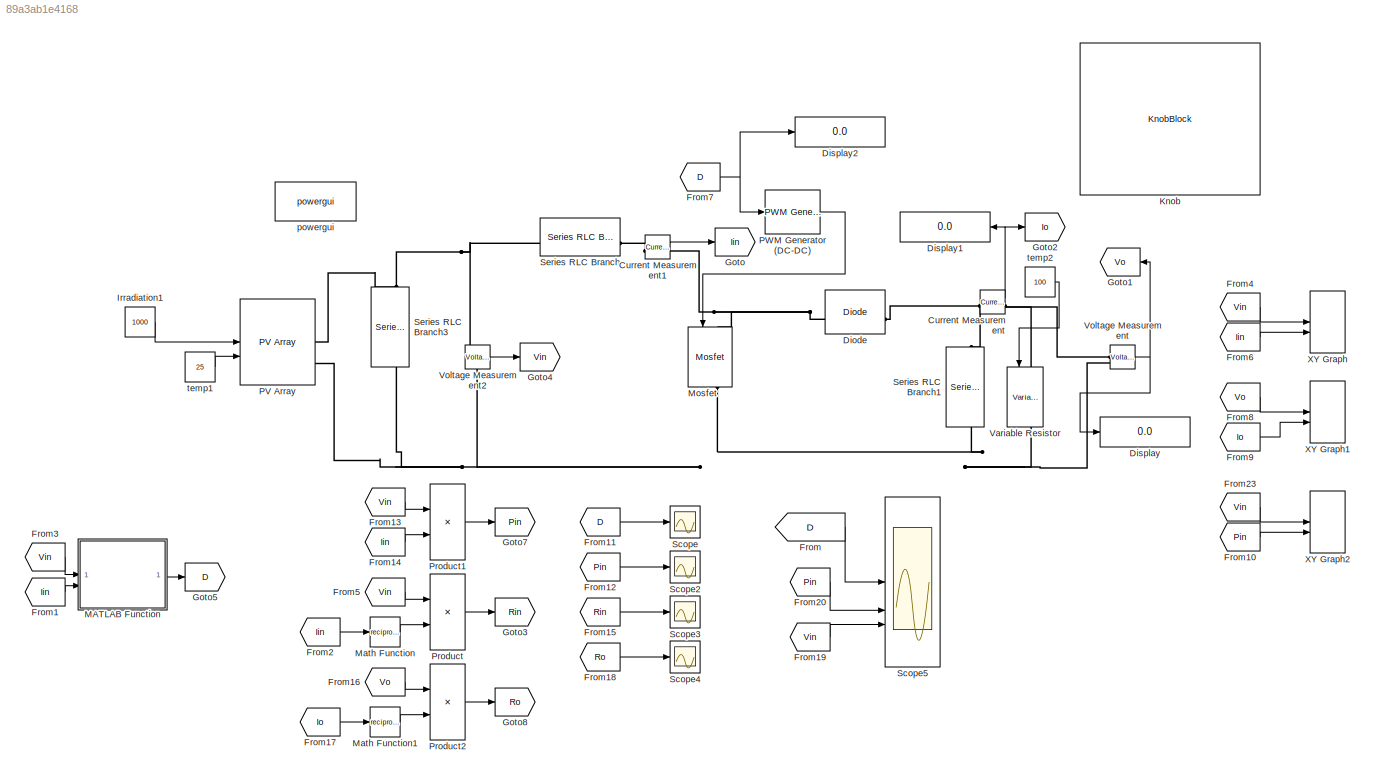
MODEL slx_89a3ab1e4168
KIND model
CONFIG AbsTol = auto
CONFIG EnableMultiTasking = off
CONFIG FixedStep = auto
CONFIG MaxStep = auto
CONFIG MinStep = auto
CONFIG RelTol = 1e-3
CONFIG SampleTimeConstraint = Unconstrained
CONFIG SolverName = VariableStepAuto
CONFIG StartTime = 0.0
CONFIG StopTime = 100
BLOCK [Reference] Current Measurement  REF=spsCurrentMeasurementLib/Current Measurement
  LibrarySourceBlock = sps_lib/Sensors and Measurements/Current Measurement
  SourceBlock = spsCurrentMeasurementLib/Current Measurement
  SourceType = Current Measurement
  UserDataPersistent = on
BLOCK [Reference] Current Measurement1  REF=spsCurrentMeasurementLib/Current Measurement
  LibrarySourceBlock = sps_lib/Sensors and Measurements/Current Measurement
  SourceBlock = spsCurrentMeasurementLib/Current Measurement
  SourceType = Current Measurement
  UserDataPersistent = on
BLOCK [Reference] Diode  REF=spsDiodeLib/Diode
  LibrarySourceBlock = sps_lib/Power Electronics/Diode
  SourceBlock = spsDiodeLib/Diode
  SourceType = Diode
BLOCK [Display] Display
  Decimation = 1
BLOCK [Display] Display1
  Decimation = 1
BLOCK [Display] Display2
  Decimation = 1
BLOCK [From] From
  GotoTag = D
BLOCK [From] From1
  GotoTag = Iin
BLOCK [From] From10
  GotoTag = Pin
BLOCK [From] From11
  GotoTag = D
BLOCK [From] From12
  GotoTag = Pin
BLOCK [From] From13
  GotoTag = Vin
BLOCK [From] From14
  GotoTag = Iin
BLOCK [From] From15
  GotoTag = Rin
BLOCK [From] From16
  GotoTag = Vo
BLOCK [From] From17
  GotoTag = Io
BLOCK [From] From18
  GotoTag = Ro
BLOCK [From] From19
  GotoTag = Vin
BLOCK [From] From2
  GotoTag = Iin
BLOCK [From] From20
  GotoTag = Pin
BLOCK [From] From23
  GotoTag = Vin
BLOCK [From] From3
  GotoTag = Vin
BLOCK [From] From4
  GotoTag = Vin
BLOCK [From] From5
  GotoTag = Vin
BLOCK [From] From6
  GotoTag = Iin
BLOCK [From] From7
  GotoTag = D
BLOCK [From] From8
  GotoTag = Vo
BLOCK [From] From9
  GotoTag = Io
BLOCK [Goto] Goto
  GotoTag = Iin
BLOCK [Goto] Goto1
  GotoTag = Vo
BLOCK [Goto] Goto2
  GotoTag = Io
BLOCK [Goto] Goto3
  GotoTag = Rin
BLOCK [Goto] Goto4
  GotoTag = Vin
BLOCK [Goto] Goto5
  GotoTag = D
BLOCK [Goto] Goto7
  GotoTag = Pin
BLOCK [Goto] Goto8
  GotoTag = Ro
BLOCK [Constant] Irradiation1
  Value = 1000
BLOCK [KnobBlock] Knob
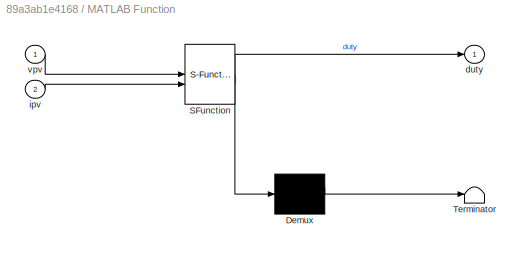
BLOCK [SubSystem] MATLAB Function
  ErrorFcn = Stateflow.Translate.translate
  PermitHierarchicalResolution = ExplicitOnly
  SFBlockType = MATLAB Function
  SystemSampleTime = 0.01
  TreatAsAtomicUnit = on
BLOCK [Demux] MATLAB Function/ Demux 
  Outputs = 1
BLOCK [S-Function] MATLAB Function/ SFunction 
  EnableBusSupport = on
  FunctionName = sf_sfun
  PortCounts = [2 2]
  SFcnIsStateOwnerBlock = off
  SFunctionDeploymentMode = off
  Tag = Stateflow S-Function 2
BLOCK [Terminator] MATLAB Function/ Terminator 
BLOCK [Outport] MATLAB Function/duty
BLOCK [Inport] MATLAB Function/ipv
  Port = 2
BLOCK [Inport] MATLAB Function/vpv
BLOCK [Math] Math Function
  Operator = reciprocal
BLOCK [Math] Math Function1
  Operator = reciprocal
BLOCK [Reference] Mosfet  REF=spsMosfetLib/Mosfet
  LibrarySourceBlock = sps_lib/Power Electronics/Mosfet
  NameLocation = left
  SourceBlock = spsMosfetLib/Mosfet
  SourceType = Mosfet
BLOCK [Reference] PV Array  REF=spsPVArrayLib/PV Array
  LibrarySourceBlock = sps_lib/Sources/PV Array
  SourceBlock = spsPVArrayLib/PV Array
  SourceType = PV array
BLOCK [Reference] PWM Generator (DC-DC)  REF=spsPWMGeneratorDCDCLib/PWM Generator
(DC-DC)
  LibrarySourceBlock = sps_lib/Power Electronics/Power Electronics Control/PWM Generator\n(DC-DC)
  SourceBlock = spsPWMGeneratorDCDCLib/PWM Generator\n(DC-DC)
  SourceType = PWM Generator (DC-DC)
BLOCK [Product] Product
BLOCK [Product] Product1
BLOCK [Product] Product2
BLOCK [Scope] Scope
  Floating = off
  NumInputPorts = 1
  ScopeSpecificationString = Simulink.scopes.TimeScopeBlockCfg('CurrentConfiguration', extmgr.ConfigurationSet(extmgr.Configuration('Core','General UI',true),extmgr.Configuration('Core','Source UI',true),extmgr.Configuration('Sources','WiredSimulink',true,'DataLoggingVariableName','ScopeData1'),extmgr.Configuration('Visuals','Time Domain',true,'SerializedDisplays',{struct('MinYLimReal','0.48388','MaxYLimReal','0.50517','YLabe...<+1565ch>
BLOCK [Scope] Scope2
  Floating = off
  NumInputPorts = 1
  ScopeSpecificationString = Simulink.scopes.TimeScopeBlockCfg('CurrentConfiguration', extmgr.ConfigurationSet(extmgr.Configuration('Core','General UI',true),extmgr.Configuration('Core','Source UI',true),extmgr.Configuration('Sources','WiredSimulink',true,'DataLoggingVariableName','ScopeData2'),extmgr.Configuration('Visuals','Time Domain',true,'SerializedDisplays',{struct('MinYLimReal','311.87671','MaxYLimReal','325.5011','YL...<+1578ch>
BLOCK [Scope] Scope3
  Floating = off
  NumInputPorts = 1
  ScopeSpecificationString = Simulink.scopes.TimeScopeBlockCfg('CurrentConfiguration', extmgr.ConfigurationSet(extmgr.Configuration('Core','General UI',true),extmgr.Configuration('Core','Source UI',true),extmgr.Configuration('Sources','WiredSimulink',true,'DataLoggingVariableName','ScopeData3'),extmgr.Configuration('Visuals','Time Domain',true,'SerializedDisplays',{struct('MinYLimReal','311.87671','MaxYLimReal','325.5011','YL...<+1578ch>
BLOCK [Scope] Scope4
  Floating = off
  NumInputPorts = 1
  ScopeSpecificationString = Simulink.scopes.TimeScopeBlockCfg('CurrentConfiguration', extmgr.ConfigurationSet(extmgr.Configuration('Core','General UI',true),extmgr.Configuration('Core','Source UI',true),extmgr.Configuration('Sources','WiredSimulink',true,'DataLoggingVariableName','ScopeData4'),extmgr.Configuration('Visuals','Time Domain',true,'SerializedDisplays',{struct('MinYLimReal','311.87671','MaxYLimReal','325.5011','YL...<+1578ch>
BLOCK [Scope] Scope5
  Floating = off
  NumInputPorts = 3
  ScopeSpecificationString = Simulink.scopes.TimeScopeBlockCfg('CurrentConfiguration', extmgr.ConfigurationSet(extmgr.Configuration('Core','General UI',true,'FigureColor',[1 1 1]),extmgr.Configuration('Core','Source UI',true),extmgr.Configuration('Sources','WiredSimulink',true),extmgr.Configuration('Visuals','Time Domain',true,'SerializedDisplays',{struct('MinYLimReal','0.57562','MaxYLimReal','0.81938','YLabelReal','','MinYLi...<+3089ch>
BLOCK [Reference] Series RLC Branch  REF=spsSeriesRLCBranchLib/Series RLC Branch
  LibrarySourceBlock = sps_lib/Passives/Series RLC Branch
  SourceBlock = spsSeriesRLCBranchLib/Series RLC Branch
  SourceType = Series RLC Branch
BLOCK [Reference] Series RLC Branch1  REF=spsSeriesRLCBranchLib/Series RLC Branch
  LibrarySourceBlock = sps_lib/Passives/Series RLC Branch
  NameLocation = left
  SourceBlock = spsSeriesRLCBranchLib/Series RLC Branch
  SourceType = Series RLC Branch
BLOCK [Reference] Series RLC Branch3  REF=spsSeriesRLCBranchLib/Series RLC Branch
  LibrarySourceBlock = sps_lib/Passives/Series RLC Branch
  NameLocation = left
  SourceBlock = spsSeriesRLCBranchLib/Series RLC Branch
  SourceType = Series RLC Branch
BLOCK [Reference] Variable Resistor  REF=spsVariableResistorLib/Variable Resistor
  LibrarySourceBlock = sps_lib/Passives/Variable Resistor
  NameLocation = left
  SourceBlock = spsVariableResistorLib/Variable Resistor
  SourceType = Variable Resistor
BLOCK [Reference] Voltage Measurement  REF=spsVoltageMeasurementLib/Voltage Measurement
  LibrarySourceBlock = sps_lib/Sensors and Measurements/Voltage Measurement
  SourceBlock = spsVoltageMeasurementLib/Voltage Measurement
  SourceType = Voltage Measurement
  UserDataPersistent = on
BLOCK [Reference] Voltage Measurement2  REF=spsVoltageMeasurementLib/Voltage Measurement
  LibrarySourceBlock = sps_lib/Sensors and Measurements/Voltage Measurement
  SourceBlock = spsVoltageMeasurementLib/Voltage Measurement
  SourceType = Voltage Measurement
  UserDataPersistent = on
BLOCK [Record] XY Graph
  CompatibilityTag = XY
  FileSettingsInternal = {"entries":[{"content":{"excelSettings":{"content":{},"type":"Streamout.ExcelSettings"}},"type":"Streamout.FileSettingStorage","uuid":""}],"packageUris":["http:\/\/schema.mathworks.com\/mf0\/streamout_blocks\/R2020a"],"version":"1.0"}  <repeated x3 — deduplicated; at blocks: XY Graph, XY Graph1, XY Graph2>
  Layout = [1 1]
  SignalsInternal = {"entries":[{"content":{"signals":[{"content":{"blockPath":[],"dimensions":[1],"domain":"","lineColor":"#ff6929","lineWidth":2,"port":1,"sid":[""],"signalID":1,"signalName":"From4"},"type":"RecordBlkView.Signal","uuid":""},{"content":{"blockPath":[],"dimensions":[1],"domain":"","lineColor":"#b746ff","lineWidth":2,"port":2,"sid":[""],"signalID":2,"signalName":"From6"},"type":"RecordBlkView.Signal",...<+156ch>
  VisualizationBindings = {"sparklinesplugin":{"info":[{"bindingParametersList":[],"subplotID":1}]}}
BLOCK [Record] XY Graph1
  CompatibilityTag = XY
  Layout = [1 1]
  SignalsInternal = {"entries":[{"content":{"signals":[{"content":{"blockPath":[],"dimensions":[1],"domain":"","lineColor":"#a2142f","lineWidth":2,"port":1,"sid":[""],"signalID":1,"signalName":"From8"},"type":"RecordBlkView.Signal","uuid":""},{"content":{"blockPath":[],"dimensions":[1],"domain":"","lineColor":"#139fff","lineWidth":2,"port":2,"sid":[""],"signalID":2,"signalName":"From9"},"type":"RecordBlkView.Signal",...<+156ch>
  VisualizationBindings = {"sparklinesplugin":{"info":[{"bindingParametersList":[],"subplotID":1}]}}
BLOCK [Record] XY Graph2
  CompatibilityTag = XY
  Layout = [1 1]
  SignalsInternal = {"entries":[{"content":{"signals":[{"content":{"blockPath":[],"dimensions":[1],"domain":"","lineColor":"#a2142f","plots":[ 1 ],"port":1,"sid":[""],"signalID":1,"signalName":"From23"},"type":"RecordBlkView.Signal","uuid":""},{"content":{"blockPath":[],"dimensions":[1],"domain":"","lineColor":"#139fff","plots":[ 1 ],"port":2,"sid":[""],"signalID":2,"signalName":"From10"},"type":"RecordBlkView.Signal...<+158ch>
  VisualizationBindings = {"sparklinesplugin":{"info":[{"bindingParametersList":[],"subplotID":1}]}}
BLOCK [Reference] powergui  REF=spspowerguiLib/powergui
  Priority = 1
  SourceBlock = spspowerguiLib/powergui
  SourceType = PSB option menu block
BLOCK [Constant] temp1
  Value = 25
BLOCK [Constant] temp2
  Value = 100
LINE Current Measurement1:1 -> Goto:1
NET Current Measurement:1 -> Display1:1, Goto2:1
LINE From10:1 -> XY Graph2:2
LINE From11:1 -> Scope:1
LINE From12:1 -> Scope2:1
LINE From13:1 -> Product1:1
LINE From14:1 -> Product1:2
LINE From15:1 -> Scope3:1
LINE From16:1 -> Product2:1
LINE From17:1 -> Math Function1:1
LINE From18:1 -> Scope4:1
LINE From19:1 -> Scope5:3
LINE From1:1 -> MATLAB Function:2
LINE From20:1 -> Scope5:2
LINE From23:1 -> XY Graph2:1
LINE From2:1 -> Math Function:1
LINE From3:1 -> MATLAB Function:1
LINE From4:1 -> XY Graph:1
LINE From5:1 -> Product:1
LINE From6:1 -> XY Graph:2
NET From7:1 -> Display2:1, PWM Generator (DC-DC):1
LINE From8:1 -> XY Graph1:1
LINE From9:1 -> XY Graph1:2
LINE From:1 -> Scope5:1
LINE Irradiation1:1 -> PV Array:1
LINE MATLAB Function:1 -> Goto5:1
LINE Math Function1:1 -> Product2:2
LINE Math Function:1 -> Product:2
LINE PWM Generator (DC-DC):1 -> Mosfet:1
LINE Product1:1 -> Goto7:1
LINE Product2:1 -> Goto8:1
LINE Product:1 -> Goto3:1
LINE Voltage Measurement2:1 -> Goto4:1
NET Voltage Measurement:1 -> Display:1, Goto1:1
LINE temp1:1 -> PV Array:2
LINE temp2:1 -> Variable Resistor:1
PLINE Current Measurement1:LConn1 -- Series RLC Branch:RConn1
PNET net1: Current Measurement1:RConn1 -- Diode:LConn1 -- Mosfet:LConn1
PNET net2: Current Measurement:LConn1 -- Diode:RConn1 -- Series RLC Branch1:LConn1
PNET net3: Current Measurement:RConn1 -- Variable Resistor:LConn1 -- Voltage Measurement:LConn1
PNET net4: Mosfet:RConn1 -- PV Array:RConn2 -- Series RLC Branch1:RConn1 -- Series RLC Branch3:RConn1 -- Variable Resistor:RConn1 -- Voltage Measurement2:LConn2 -- Voltage Measurement:LConn2
PNET net5: PV Array:RConn1 -- Series RLC Branch3:LConn1 -- Series RLC Branch:LConn1 -- Voltage Measurement2:LConn1
note: NET lines group one-source signal fan-out (src -> all destinations, sorted); 1:1 wires keep LINE; PNET lines group multi-terminal physical nets as a canonical sorted terminal list (undirected conserving connections); 2-terminal nets keep the pairwise PLINE form
CHART MATLAB Function states=1 transitions=1
  STATE_LABEL 'eML_blk_kernel()'
  STATE_LABEL 'SCRIPT:\nfunction duty = MPPT_algorithm(vpv,ipv)\nduty=0.8;\ndelta=0.005;\n\npersistent Vold Pold duty_old;\nif isempty(Vold)\n    Vold=0;\n    Pold=0;\n    duty_old=duty;\nend\n\nP=vpv*ipv;\ndV=vpv-Vold;\ndP=P-Pold;\n\nif dP~=0\n    if dP>0\n        if dV>0\n            duty=duty_old-delta;\n        else \n            duty=duty_old+delta;\n        end\n    elseif dP<0\n        if dV>0\n            duty=duty_old+delta;\n  ...<+182ch>'
CHART  states=0 transitions=0
